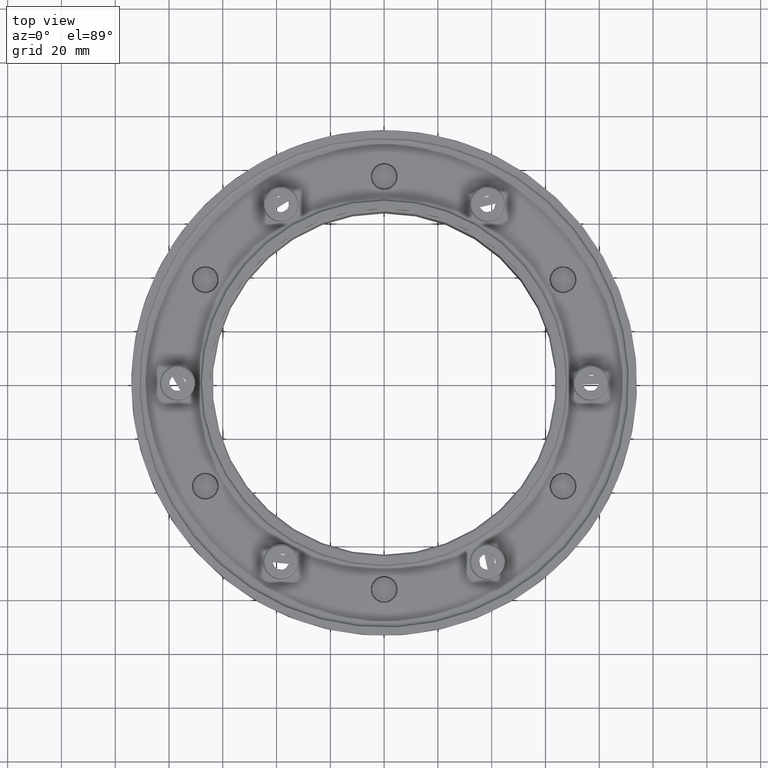
[diagram: clean part render]
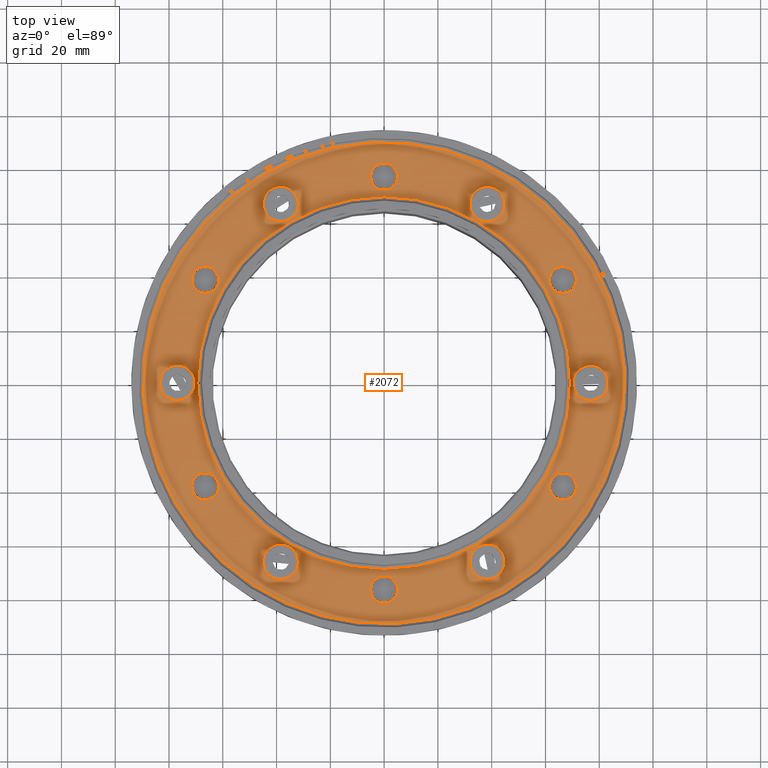
[diagram: same view with one face highlighted and labeled with its STEP entity id]
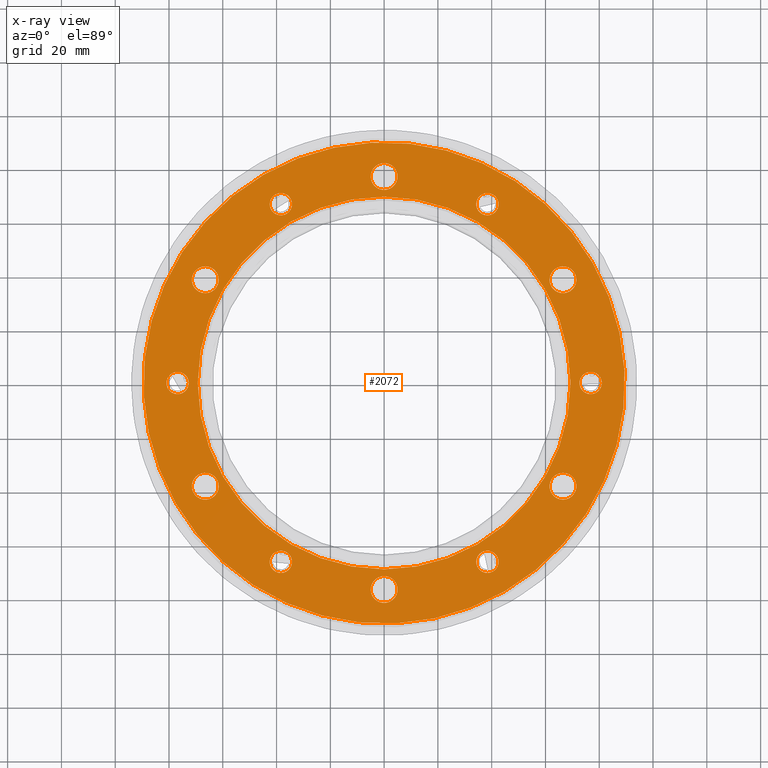
[diagram: x-ray of the same camera — body ghosted, the highlighted face saturated]
A machine part, top view. The second image highlights one B-rep face of the part: STEP entity #2072.
The next image is the same camera in x-ray: the body ghosted, the highlighted face saturated — about 0% of this face is hidden behind the body in this view.
In plain terms, the highlighted planar face has unit normal (-0, -0, 1).
Its self-contained STEP definition (entity closure, byte-faithful):
#109=FACE_BOUND('',#439,.T.);
#110=FACE_BOUND('',#440,.T.);
#111=FACE_BOUND('',#441,.T.);
#112=FACE_BOUND('',#442,.T.);
#113=FACE_BOUND('',#443,.T.);
#114=FACE_BOUND('',#444,.T.);
#115=FACE_BOUND('',#445,.T.);
#116=FACE_BOUND('',#446,.T.);
#117=FACE_BOUND('',#447,.T.);
#118=FACE_BOUND('',#448,.T.);
#119=FACE_BOUND('',#449,.T.);
#120=FACE_BOUND('',#450,.T.);
#121=FACE_BOUND('',#451,.T.);
#152=PLANE('',#2434);
#294=FACE_OUTER_BOUND('',#438,.T.);
#438=EDGE_LOOP('',(#1737));
#439=EDGE_LOOP('',(#1738,#1739));
#440=EDGE_LOOP('',(#1740));
#441=EDGE_LOOP('',(#1741));
#442=EDGE_LOOP('',(#1742));
#443=EDGE_LOOP('',(#1743));
#444=EDGE_LOOP('',(#1744));
#445=EDGE_LOOP('',(#1745));
#446=EDGE_LOOP('',(#1746));
#447=EDGE_LOOP('',(#1747));
#448=EDGE_LOOP('',(#1748));
#449=EDGE_LOOP('',(#1749));
#450=EDGE_LOOP('',(#1750));
#451=EDGE_LOOP('',(#1751));
#814=CIRCLE('',#2430,89.5);
#817=CIRCLE('',#2435,69.3);
#818=CIRCLE('',#2436,69.3);
#819=CIRCLE('',#2437,5.);
#820=CIRCLE('',#2438,5.);
#821=CIRCLE('',#2439,5.);
#822=CIRCLE('',#2440,5.);
#823=CIRCLE('',#2441,5.);
#824=CIRCLE('',#2442,5.);
#825=CIRCLE('',#2443,4.15);
#826=CIRCLE('',#2444,4.15);
#827=CIRCLE('',#2445,4.15);
#828=CIRCLE('',#2446,4.15);
#829=CIRCLE('',#2447,4.15);
#830=CIRCLE('',#2448,4.15);
#1016=VERTEX_POINT('',#3682);
#1019=VERTEX_POINT('',#3692);
#1020=VERTEX_POINT('',#3693);
#1021=VERTEX_POINT('',#3696);
#1022=VERTEX_POINT('',#3698);
#1023=VERTEX_POINT('',#3700);
#1024=VERTEX_POINT('',#3702);
#1025=VERTEX_POINT('',#3704);
#1026=VERTEX_POINT('',#3706);
#1027=VERTEX_POINT('',#3708);
#1028=VERTEX_POINT('',#3710);
#1029=VERTEX_POINT('',#3712);
#1030=VERTEX_POINT('',#3714);
#1031=VERTEX_POINT('',#3716);
#1032=VERTEX_POINT('',#3718);
#1275=EDGE_CURVE('',#1016,#1016,#814,.T.);
#1279=EDGE_CURVE('',#1019,#1020,#817,.T.);
#1280=EDGE_CURVE('',#1020,#1019,#818,.T.);
#1281=EDGE_CURVE('',#1021,#1021,#819,.T.);
#1282=EDGE_CURVE('',#1022,#1022,#820,.T.);
#1283=EDGE_CURVE('',#1023,#1023,#821,.T.);
#1284=EDGE_CURVE('',#1024,#1024,#822,.T.);
#1285=EDGE_CURVE('',#1025,#1025,#823,.T.);
#1286=EDGE_CURVE('',#1026,#1026,#824,.T.);
#1287=EDGE_CURVE('',#1027,#1027,#825,.T.);
#1288=EDGE_CURVE('',#1028,#1028,#826,.T.);
#1289=EDGE_CURVE('',#1029,#1029,#827,.T.);
#1290=EDGE_CURVE('',#1030,#1030,#828,.T.);
#1291=EDGE_CURVE('',#1031,#1031,#829,.T.);
#1292=EDGE_CURVE('',#1032,#1032,#830,.T.);
#1737=ORIENTED_EDGE('',*,*,#1275,.F.);
#1738=ORIENTED_EDGE('',*,*,#1279,.F.);
#1739=ORIENTED_EDGE('',*,*,#1280,.F.);
#1740=ORIENTED_EDGE('',*,*,#1281,.T.);
#1741=ORIENTED_EDGE('',*,*,#1282,.T.);
#1742=ORIENTED_EDGE('',*,*,#1283,.T.);
#1743=ORIENTED_EDGE('',*,*,#1284,.T.);
#1744=ORIENTED_EDGE('',*,*,#1285,.T.);
#1745=ORIENTED_EDGE('',*,*,#1286,.T.);
#1746=ORIENTED_EDGE('',*,*,#1287,.T.);
#1747=ORIENTED_EDGE('',*,*,#1288,.T.);
#1748=ORIENTED_EDGE('',*,*,#1289,.T.);
#1749=ORIENTED_EDGE('',*,*,#1290,.T.);
#1750=ORIENTED_EDGE('',*,*,#1291,.T.);
#1751=ORIENTED_EDGE('',*,*,#1292,.T.);
#2072=ADVANCED_FACE('',(#294,#109,#110,#111,#112,#113,#114,#115,#116,#117,
#118,#119,#120,#121),#152,.T.);
#2430=AXIS2_PLACEMENT_3D('',#3684,#3004,#3005);
#2434=AXIS2_PLACEMENT_3D('',#3691,#3013,#3014);
#2435=AXIS2_PLACEMENT_3D('',#3694,#3015,#3016);
#2436=AXIS2_PLACEMENT_3D('',#3695,#3017,#3018);
#2437=AXIS2_PLACEMENT_3D('',#3697,#3019,#3020);
#2438=AXIS2_PLACEMENT_3D('',#3699,#3021,#3022);
#2439=AXIS2_PLACEMENT_3D('',#3701,#3023,#3024);
#2440=AXIS2_PLACEMENT_3D('',#3703,#3025,#3026);
#2441=AXIS2_PLACEMENT_3D('',#3705,#3027,#3028);
#2442=AXIS2_PLACEMENT_3D('',#3707,#3029,#3030);
#2443=AXIS2_PLACEMENT_3D('',#3709,#3031,#3032);
#2444=AXIS2_PLACEMENT_3D('',#3711,#3033,#3034);
#2445=AXIS2_PLACEMENT_3D('',#3713,#3035,#3036);
#2446=AXIS2_PLACEMENT_3D('',#3715,#3037,#3038);
#2447=AXIS2_PLACEMENT_3D('',#3717,#3039,#3040);
#2448=AXIS2_PLACEMENT_3D('',#3719,#3041,#3042);
#3004=DIRECTION('center_axis',(0.,-1.,0.));
#3005=DIRECTION('ref_axis',(-1.22464679914735E-16,0.,1.));
#3013=DIRECTION('center_axis',(0.,1.,0.));
#3014=DIRECTION('ref_axis',(0.,0.,1.));
#3015=DIRECTION('center_axis',(0.,1.,0.));
#3016=DIRECTION('ref_axis',(1.,0.,-1.22464679914735E-16));
#3017=DIRECTION('center_axis',(0.,1.,0.));
#3018=DIRECTION('ref_axis',(1.,0.,-1.22464679914735E-16));
#3019=DIRECTION('center_axis',(0.,-1.,0.));
#3020=DIRECTION('ref_axis',(-0.499999999999999,0.,-0.866025403784439));
#3021=DIRECTION('center_axis',(0.,-1.,0.));
#3022=DIRECTION('ref_axis',(0.5,0.,-0.866025403784438));
#3023=DIRECTION('center_axis',(0.,-1.,0.));
#3024=DIRECTION('ref_axis',(1.,0.,1.66533453693773E-16));
#3025=DIRECTION('center_axis',(0.,-1.,0.));
#3026=DIRECTION('ref_axis',(0.5,0.,0.866025403784439));
#3027=DIRECTION('center_axis',(0.,-1.,0.));
#3028=DIRECTION('ref_axis',(-0.5,0.,0.866025403784439));
#3029=DIRECTION('center_axis',(0.,-1.,0.));
#3030=DIRECTION('ref_axis',(-1.,0.,0.));
#3031=DIRECTION('center_axis',(0.,-1.,0.));
#3032=DIRECTION('ref_axis',(-0.499999999999999,0.,-0.866025403784439));
#3033=DIRECTION('center_axis',(0.,-1.,0.));
#3034=DIRECTION('ref_axis',(0.5,0.,-0.866025403784438));
#3035=DIRECTION('center_axis',(0.,-1.,0.));
#3036=DIRECTION('ref_axis',(1.,0.,1.33761810195802E-16));
#3037=DIRECTION('center_axis',(0.,-1.,0.));
#3038=DIRECTION('ref_axis',(0.5,0.,0.866025403784439));
#3039=DIRECTION('center_axis',(0.,-1.,0.));
#3040=DIRECTION('ref_axis',(-0.5,0.,0.866025403784439));
#3041=DIRECTION('center_axis',(0.,-1.,0.));
#3042=DIRECTION('ref_axis',(-1.,0.,0.));
#3682=CARTESIAN_POINT('',(2.19211777047376E-14,-2.5,-89.5));
#3684=CARTESIAN_POINT('Origin',(0.,-2.5,0.));
#3691=CARTESIAN_POINT('Origin',(-79.55,-2.5,0.));
#3692=CARTESIAN_POINT('',(-69.3,-2.5,1.69736046361823E-14));
#3693=CARTESIAN_POINT('',(-8.48680231809116E-15,-2.5,69.3));
#3694=CARTESIAN_POINT('Origin',(0.,-2.5,0.));
#3695=CARTESIAN_POINT('Origin',(0.,-2.5,0.));
#3696=CARTESIAN_POINT('',(79.3,-2.5,4.33012701892234));
#3697=CARTESIAN_POINT('Origin',(76.8,-2.5,1.4210854715202E-13));
#3698=CARTESIAN_POINT('',(35.8999999999999,-2.5,70.8408780295672));
#3699=CARTESIAN_POINT('Origin',(38.3999999999999,-2.5,66.5107510106449));
#3700=CARTESIAN_POINT('',(-43.4000000000001,-2.5,66.5107510106448));
#3701=CARTESIAN_POINT('Origin',(-38.4000000000001,-2.5,66.5107510106449));
#3702=CARTESIAN_POINT('',(-79.3,-2.5,-4.33012701892229));
#3703=CARTESIAN_POINT('Origin',(-76.8,-2.5,-9.76996261670138E-14));
#3704=CARTESIAN_POINT('',(-35.8999999999999,-2.5,-70.8408780295671));
#3705=CARTESIAN_POINT('Origin',(-38.3999999999999,-2.5,-66.5107510106449));
#3706=CARTESIAN_POINT('',(43.4000000000001,-2.5,-66.5107510106449));
#3707=CARTESIAN_POINT('Origin',(38.4000000000001,-2.5,-66.5107510106449));
#3708=CARTESIAN_POINT('',(2.07500000000008,-2.5,-73.2059945742946));
#3709=CARTESIAN_POINT('Origin',(8.43769498715119E-14,-2.5,-76.8));
#3710=CARTESIAN_POINT('',(64.4357510106449,-2.5,-34.8059945742945));
#3711=CARTESIAN_POINT('Origin',(66.5107510106449,-2.5,-38.3999999999999));
#3712=CARTESIAN_POINT('',(62.3607510106449,-2.5,38.4));
#3713=CARTESIAN_POINT('Origin',(66.5107510106449,-2.5,38.4));
#3714=CARTESIAN_POINT('',(-2.07500000000004,-2.5,73.2059945742946));
#3715=CARTESIAN_POINT('Origin',(-3.5527136788005E-14,-2.5,76.8));
#3716=CARTESIAN_POINT('',(-64.4357510106449,-2.5,34.8059945742946));
#3717=CARTESIAN_POINT('Origin',(-66.5107510106449,-2.5,38.4));
#3718=CARTESIAN_POINT('',(-62.3607510106449,-2.5,-38.4));
#3719=CARTESIAN_POINT('Origin',(-66.5107510106449,-2.5,-38.4));